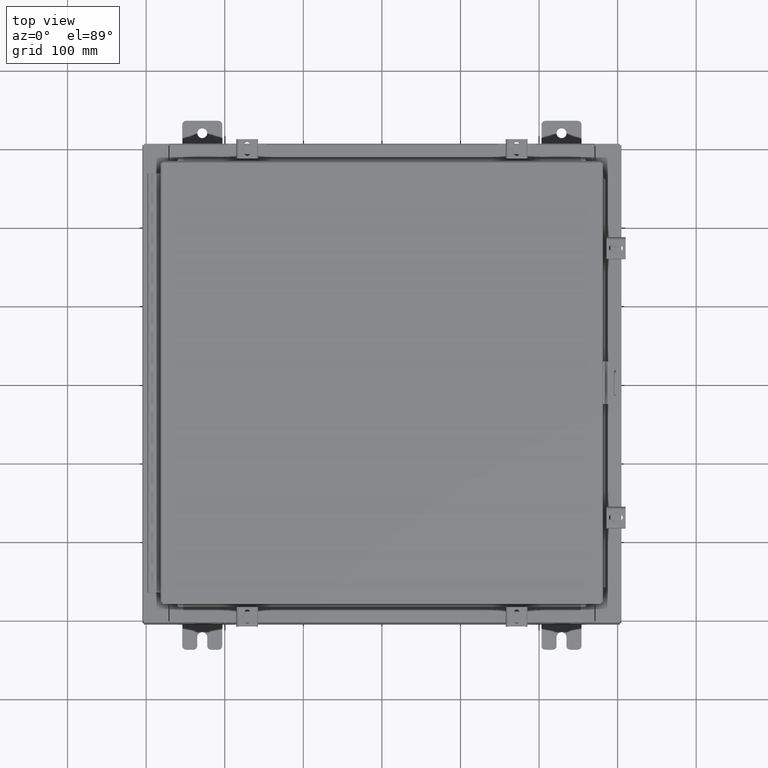
[diagram: clean part render]
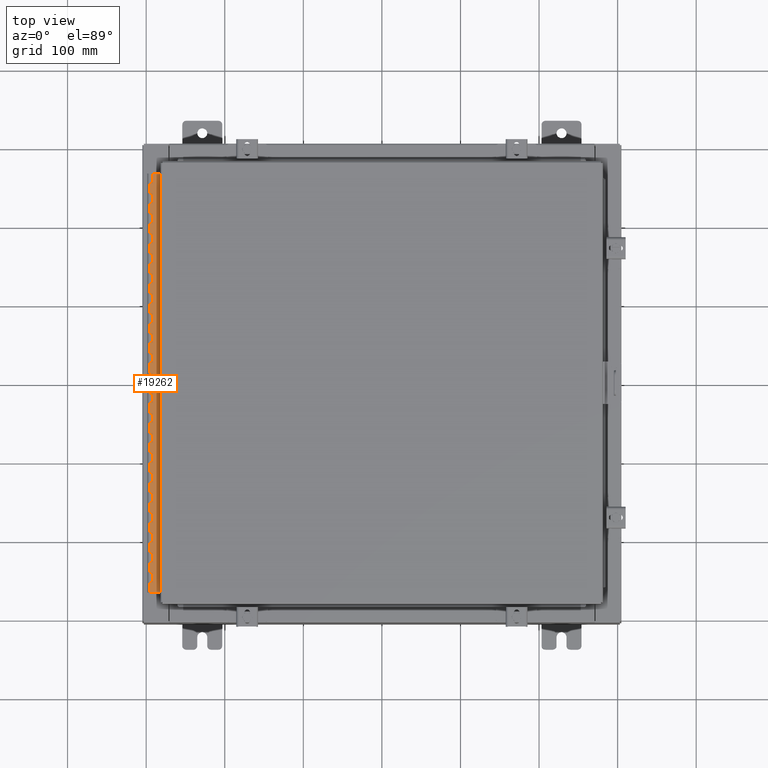
[diagram: same view with one face highlighted and labeled with its STEP entity id]
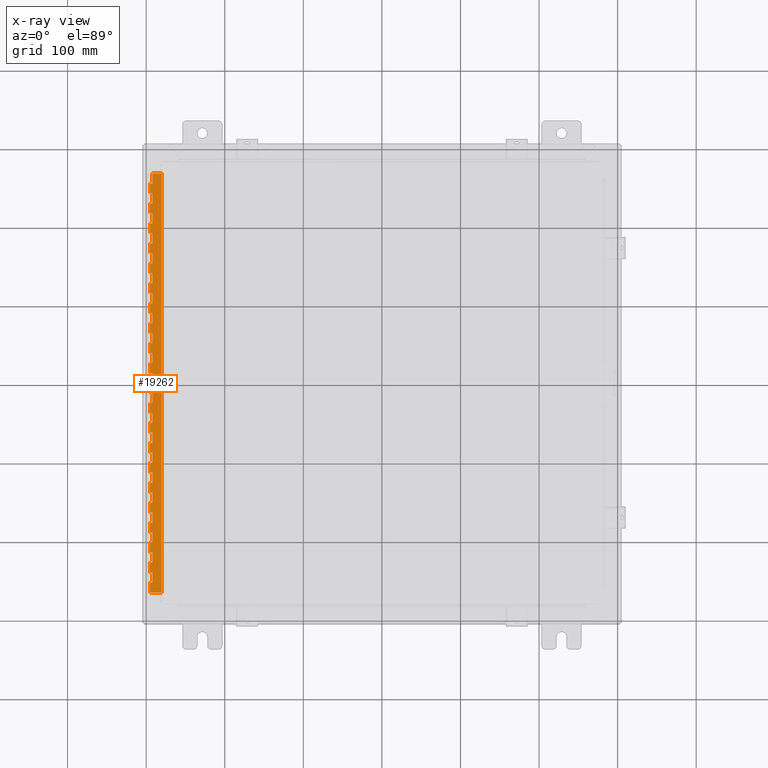
[diagram: x-ray of the same camera — body ghosted, the highlighted face saturated]
A machine part, top view. The second image highlights one B-rep face of the part: STEP entity #19262.
The next image is the same camera in x-ray: the body ghosted, the highlighted face saturated — about 0% of this face is hidden behind the body in this view.
In plain terms, the highlighted planar face has unit normal (-0, -0, 1).
Its self-contained STEP definition (entity closure, byte-faithful):
#18 = DIRECTION ( 'NONE',  ( 0.0000000000000000000, -0.0000000000000000000, -1.000000000000000000 ) ) ;
#49 = CARTESIAN_POINT ( 'NONE',  ( -0.6869999999999982800, 0.5504999999999997700, -21.00000000000000000 ) ) ;
#50 = ORIENTED_EDGE ( 'NONE', *, *, #13926, .F. ) ;
#84 = VECTOR ( 'NONE', #18016, 39.37007874015748100 ) ;
#151 = VECTOR ( 'NONE', #24504, 39.37007874015748100 ) ;
#156 = VERTEX_POINT ( 'NONE', #7558 ) ;
#248 = LINE ( 'NONE', #20268, #6107 ) ;
#263 = ORIENTED_EDGE ( 'NONE', *, *, #353, .T. ) ;
#353 = EDGE_CURVE ( 'NONE', #19919, #2210, #5261, .T. ) ;
#442 = ORIENTED_EDGE ( 'NONE', *, *, #5819, .F. ) ;
#473 = EDGE_CURVE ( 'NONE', #12554, #30947, #22893, .T. ) ;
#490 = CARTESIAN_POINT ( 'NONE',  ( -0.6869999999999973900, 0.8004999999999995500, -17.50000000000000000 ) ) ;
#509 = ORIENTED_EDGE ( 'NONE', *, *, #11523, .F. ) ;
#539 = DIRECTION ( 'NONE',  ( -3.389037039080723100E-015, -1.000000000000000000, 0.0000000000000000000 ) ) ;
#641 = VERTEX_POINT ( 'NONE', #18877 ) ;
#678 = VECTOR ( 'NONE', #28647, 39.37007874015748100 ) ;
#688 = EDGE_CURVE ( 'NONE', #15639, #5275, #29940, .T. ) ;
#880 = EDGE_CURVE ( 'NONE', #24416, #12182, #18561, .T. ) ;
#916 = CARTESIAN_POINT ( 'NONE',  ( -0.6869999999999978300, 0.6754999999999996600, -19.00000000000000000 ) ) ;
#927 = EDGE_CURVE ( 'NONE', #12775, #3323, #24412, .T. ) ;
#1114 = DIRECTION ( 'NONE',  ( 0.0000000000000000000, -0.0000000000000000000, -1.000000000000000000 ) ) ;
#1337 = DIRECTION ( 'NONE',  ( 0.0000000000000000000, 0.0000000000000000000, 1.000000000000000000 ) ) ;
#1353 = CARTESIAN_POINT ( 'NONE',  ( -0.6869999999999982800, 0.5504999999999997700, -14.99999999999999800 ) ) ;
#1371 = DIRECTION ( 'NONE',  ( 3.389037039080723100E-015, 1.000000000000000000, -0.0000000000000000000 ) ) ;
#1451 = ORIENTED_EDGE ( 'NONE', *, *, #6487, .F. ) ;
#1455 = VERTEX_POINT ( 'NONE', #23047 ) ;
#1461 = LINE ( 'NONE', #16138, #678 ) ;
#1539 = LINE ( 'NONE', #2860, #27385 ) ;
#1560 = EDGE_CURVE ( 'NONE', #29261, #12182, #7133, .T. ) ;
#1598 = CARTESIAN_POINT ( 'NONE',  ( -0.6869999999999978300, 0.6754999999999996600, -21.00000000000000000 ) ) ;
#1618 = EDGE_CURVE ( 'NONE', #21355, #19933, #30659, .T. ) ;
#1648 = VERTEX_POINT ( 'NONE', #6371 ) ;
#1727 = DIRECTION ( 'NONE',  ( 0.0000000000000000000, -0.0000000000000000000, -1.000000000000000000 ) ) ;
#1919 = DIRECTION ( 'NONE',  ( 0.0000000000000000000, -0.0000000000000000000, -1.000000000000000000 ) ) ;
#1979 = ORIENTED_EDGE ( 'NONE', *, *, #19379, .F. ) ;
#1980 = CARTESIAN_POINT ( 'NONE',  ( -0.6869999999999973900, 0.8004999999999995500, -4.500000000000000000 ) ) ;
#2122 = LINE ( 'NONE', #28590, #8015 ) ;
#2206 = CARTESIAN_POINT ( 'NONE',  ( -0.6869999999999982800, 0.5504999999999997700, -10.50000000000000000 ) ) ;
#2210 = VERTEX_POINT ( 'NONE', #16921 ) ;
#2219 = ORIENTED_EDGE ( 'NONE', *, *, #29480, .F. ) ;
#2320 = CARTESIAN_POINT ( 'NONE',  ( -0.6869999999999978300, 0.6754999999999996600, -7.499999999999999100 ) ) ;
#2361 = DIRECTION ( 'NONE',  ( 3.389037039080723100E-015, 1.000000000000000000, -0.0000000000000000000 ) ) ;
#2372 = LINE ( 'NONE', #29057, #9823 ) ;
#2430 = EDGE_CURVE ( 'NONE', #14320, #30277, #27863, .T. ) ;
#2503 = VECTOR ( 'NONE', #30859, 39.37007874015748100 ) ;
#2594 = ORIENTED_EDGE ( 'NONE', *, *, #3896, .F. ) ;
#2606 = VECTOR ( 'NONE', #2628, 39.37007874015748100 ) ;
#2628 = DIRECTION ( 'NONE',  ( 0.0000000000000000000, -0.0000000000000000000, -1.000000000000000000 ) ) ;
#2725 = DIRECTION ( 'NONE',  ( 3.389037039080723100E-015, 1.000000000000000000, -0.0000000000000000000 ) ) ;
#2732 = DIRECTION ( 'NONE',  ( 0.0000000000000000000, 0.0000000000000000000, 1.000000000000000000 ) ) ;
#2750 = CARTESIAN_POINT ( 'NONE',  ( -0.6869999999999982800, 0.5504999999999997700, -12.49999999999999800 ) ) ;
#2757 = VECTOR ( 'NONE', #539, 39.37007874015748100 ) ;
#2782 = DIRECTION ( 'NONE',  ( 3.389037039080723100E-015, 1.000000000000000000, -0.0000000000000000000 ) ) ;
#2812 = LINE ( 'NONE', #30800, #23572 ) ;
#2833 = CARTESIAN_POINT ( 'NONE',  ( -0.6869999999999978300, 0.6754999999999996600, -8.500000000000000000 ) ) ;
#2860 = CARTESIAN_POINT ( 'NONE',  ( -0.6869999999999982800, 0.5504999999999997700, -19.50000000000000000 ) ) ;
#3027 = CARTESIAN_POINT ( 'NONE',  ( -0.6869999999999978300, 0.6754999999999996600, -18.50000000000000000 ) ) ;
#3060 = ORIENTED_EDGE ( 'NONE', *, *, #15327, .F. ) ;
#3073 = ORIENTED_EDGE ( 'NONE', *, *, #5770, .F. ) ;
#3134 = VECTOR ( 'NONE', #19677, 39.37007874015748100 ) ;
#3143 = LINE ( 'NONE', #24012, #23132 ) ;
#3149 = DIRECTION ( 'NONE',  ( 0.0000000000000000000, -0.0000000000000000000, -1.000000000000000000 ) ) ;
#3170 = VERTEX_POINT ( 'NONE', #20617 ) ;
#3180 = CARTESIAN_POINT ( 'NONE',  ( -0.6869999999999978300, 0.6754999999999996600, -12.49999999999999800 ) ) ;
#3188 = CARTESIAN_POINT ( 'NONE',  ( -0.6869999999999982800, 0.5504999999999997700, -14.49999999999999800 ) ) ;
#3228 = ORIENTED_EDGE ( 'NONE', *, *, #6235, .F. ) ;
#3290 = LINE ( 'NONE', #19266, #16601 ) ;
#3323 = VERTEX_POINT ( 'NONE', #18632 ) ;
#3349 = CARTESIAN_POINT ( 'NONE',  ( -0.6869999999999978300, 0.6754999999999996600, -10.50000000000000000 ) ) ;
#3359 = DIRECTION ( 'NONE',  ( -3.389037039080723100E-015, -1.000000000000000000, 0.0000000000000000000 ) ) ;
#3414 = DIRECTION ( 'NONE',  ( 0.0000000000000000000, 0.0000000000000000000, 1.000000000000000000 ) ) ;
#3477 = LINE ( 'NONE', #12211, #9360 ) ;
#3500 = LINE ( 'NONE', #13623, #16813 ) ;
#3501 = CARTESIAN_POINT ( 'NONE',  ( -0.6869999999999973900, 0.8004999999999995500, -9.000000000000000000 ) ) ;
#3515 = ORIENTED_EDGE ( 'NONE', *, *, #25135, .F. ) ;
#3553 = EDGE_CURVE ( 'NONE', #26396, #19057, #20249, .T. ) ;
#3602 = EDGE_CURVE ( 'NONE', #21309, #9230, #248, .T. ) ;
#3609 = CARTESIAN_POINT ( 'NONE',  ( -0.6869999999999978300, 0.6754999999999996600, -11.50000000000000000 ) ) ;
#3713 = CARTESIAN_POINT ( 'NONE',  ( -0.6869999999999978300, 0.6754999999999996600, -2.000000000000000000 ) ) ;
#3733 = DIRECTION ( 'NONE',  ( 0.0000000000000000000, -0.0000000000000000000, -1.000000000000000000 ) ) ;
#3747 = CARTESIAN_POINT ( 'NONE',  ( -0.6869999999999982800, 0.5504999999999997700, -0.5000000000000000000 ) ) ;
#3824 = CARTESIAN_POINT ( 'NONE',  ( -0.6869999999999978300, 0.6754999999999996600, -19.50000000000000000 ) ) ;
#3840 = DIRECTION ( 'NONE',  ( -3.389037039080723100E-015, -1.000000000000000000, 0.0000000000000000000 ) ) ;
#3865 = CARTESIAN_POINT ( 'NONE',  ( -0.6869999999999982800, 0.5504999999999997700, -15.50000000000000000 ) ) ;
#3872 = CARTESIAN_POINT ( 'NONE',  ( -0.6869999999999973900, 0.8004999999999995500, -16.00000000000000000 ) ) ;
#3896 = EDGE_CURVE ( 'NONE', #11043, #24416, #30803, .T. ) ;
#3902 = CARTESIAN_POINT ( 'NONE',  ( -0.6869999999999978300, 0.6754999999999996600, -11.99999999999999800 ) ) ;
#3909 = LINE ( 'NONE', #26765, #15672 ) ;
#3926 = ORIENTED_EDGE ( 'NONE', *, *, #13192, .T. ) ;
#4067 = DIRECTION ( 'NONE',  ( 0.0000000000000000000, 0.0000000000000000000, 1.000000000000000000 ) ) ;
#4139 = EDGE_CURVE ( 'NONE', #9873, #15062, #17850, .T. ) ;
#4198 = ORIENTED_EDGE ( 'NONE', *, *, #6283, .T. ) ;
#4199 = CARTESIAN_POINT ( 'NONE',  ( -0.6869999999999978300, 0.6754999999999996600, -5.000000000000000000 ) ) ;
#4210 = DIRECTION ( 'NONE',  ( 0.0000000000000000000, 0.0000000000000000000, 1.000000000000000000 ) ) ;
#4230 = CARTESIAN_POINT ( 'NONE',  ( -0.6869999999999982800, 0.5504999999999997700, -4.500000000000000000 ) ) ;
#4294 = CARTESIAN_POINT ( 'NONE',  ( -0.6869999999999982800, 0.5504999999999997700, -1.000000000000000000 ) ) ;
#4298 = DIRECTION ( 'NONE',  ( -3.389037039080723100E-015, -1.000000000000000000, 0.0000000000000000000 ) ) ;
#4498 = CARTESIAN_POINT ( 'NONE',  ( -0.6869999999999982800, 0.5504999999999997700, -11.50000000000000000 ) ) ;
#4503 = VECTOR ( 'NONE', #10052, 39.37007874015748100 ) ;
#4610 = EDGE_CURVE ( 'NONE', #19647, #11813, #29577, .T. ) ;
#4640 = ORIENTED_EDGE ( 'NONE', *, *, #11392, .F. ) ;
#4664 = ORIENTED_EDGE ( 'NONE', *, *, #22947, .F. ) ;
#4667 = CARTESIAN_POINT ( 'NONE',  ( -0.6869999999999982800, 0.5504999999999997700, -11.50000000000000000 ) ) ;
#4670 = VECTOR ( 'NONE', #28053, 39.37007874015748100 ) ;
#4908 = VERTEX_POINT ( 'NONE', #10457 ) ;
#4910 = VERTEX_POINT ( 'NONE', #30368 ) ;
#4914 = ORIENTED_EDGE ( 'NONE', *, *, #9927, .T. ) ;
#5009 = CARTESIAN_POINT ( 'NONE',  ( -0.6869999999999978300, 0.6754999999999996600, -21.00000000000000000 ) ) ;
#5029 = ORIENTED_EDGE ( 'NONE', *, *, #25786, .F. ) ;
#5097 = LINE ( 'NONE', #24653, #30196 ) ;
#5147 = ORIENTED_EDGE ( 'NONE', *, *, #29408, .F. ) ;
#5151 = EDGE_CURVE ( 'NONE', #10481, #27557, #10367, .T. ) ;
#5217 = VECTOR ( 'NONE', #1919, 39.37007874015748100 ) ;
#5261 = LINE ( 'NONE', #21035, #25244 ) ;
#5275 = VERTEX_POINT ( 'NONE', #4667 ) ;
#5296 = VECTOR ( 'NONE', #13728, 39.37007874015748100 ) ;
#5311 = CARTESIAN_POINT ( 'NONE',  ( -0.6869999999999973900, 0.8004999999999995500, -11.00000000000000000 ) ) ;
#5313 = VECTOR ( 'NONE', #4067, 39.37007874015748100 ) ;
#5346 = DIRECTION ( 'NONE',  ( -3.389037039080723100E-015, -1.000000000000000000, 0.0000000000000000000 ) ) ;
#5415 = CARTESIAN_POINT ( 'NONE',  ( -0.6869999999999982800, 0.5504999999999997700, -6.000000000000000900 ) ) ;
#5476 = VERTEX_POINT ( 'NONE', #15517 ) ;
#5585 = VECTOR ( 'NONE', #2782, 39.37007874015748100 ) ;
#5666 = LINE ( 'NONE', #1598, #18202 ) ;
#5677 = EDGE_LOOP ( 'NONE', ( #29721, #14073, #4640, #1979, #15789, #16607, #26464, #19889, #32145, #15483, #23989, #16234, #14459, #24197, #28570, #5029, #15679, #16152, #31113, #21004, #7727, #18421, #16630, #11834, #30261, #8199, #31243, #3073, #6178, #3515, #3228, #24826, #8823, #2219, #29006, #17005, #12225, #11818, #15989, #19086, #10136, #12461, #4664, #30279, #25986, #8426, #2594, #27341, #24849, #50, #27066, #3060, #263, #30485, #6937, #24241, #30638, #509, #9580, #22960, #27710, #31880, #7891, #442, #4198, #19853, #18319, #1451, #25424, #5147, #14203, #23282, #4914, #30570, #7176, #8262, #3926, #24577, #8464, #13272, #8487, #32460, #12987, #8706, #24432, #31155 ) ) ;
#5770 = EDGE_CURVE ( 'NONE', #24657, #8689, #26776, .T. ) ;
#5819 = EDGE_CURVE ( 'NONE', #25539, #24938, #24436, .T. ) ;
#5851 = CARTESIAN_POINT ( 'NONE',  ( -0.6869999999999978300, 0.6754999999999996600, -14.99999999999999800 ) ) ;
#5856 = VECTOR ( 'NONE', #12348, 39.37007874015748100 ) ;
#5901 = CARTESIAN_POINT ( 'NONE',  ( -0.6869999999999978300, 0.6754999999999996600, -3.500000000000000000 ) ) ;
#5942 = LINE ( 'NONE', #490, #84 ) ;
#5993 = DIRECTION ( 'NONE',  ( 0.0000000000000000000, 0.0000000000000000000, 1.000000000000000000 ) ) ;
#6057 = LINE ( 'NONE', #3747, #5296 ) ;
#6107 = VECTOR ( 'NONE', #2732, 39.37007874015748100 ) ;
#6115 = DIRECTION ( 'NONE',  ( 3.389037039080723100E-015, 1.000000000000000000, -0.0000000000000000000 ) ) ;
#6147 = CARTESIAN_POINT ( 'NONE',  ( -0.6869999999999978300, 0.6754999999999996600, -21.00000000000000000 ) ) ;
#6176 = VECTOR ( 'NONE', #24770, 39.37007874015748100 ) ;
#6178 = ORIENTED_EDGE ( 'NONE', *, *, #10934, .T. ) ;
#6235 = EDGE_CURVE ( 'NONE', #641, #29515, #7578, .T. ) ;
#6283 = EDGE_CURVE ( 'NONE', #25539, #18733, #31862, .T. ) ;
#6320 = CARTESIAN_POINT ( 'NONE',  ( -0.6869999999999973900, 0.8004999999999995500, -17.99999999999999600 ) ) ;
#6371 = CARTESIAN_POINT ( 'NONE',  ( -0.6869999999999978300, 0.6754999999999996600, -11.00000000000000000 ) ) ;
#6380 = VECTOR ( 'NONE', #3359, 39.37007874015748100 ) ;
#6419 = VECTOR ( 'NONE', #14231, 39.37007874015748100 ) ;
#6446 = LINE ( 'NONE', #29855, #26417 ) ;
#6476 = DIRECTION ( 'NONE',  ( -3.389037039080723100E-015, -1.000000000000000000, 0.0000000000000000000 ) ) ;
#6487 = EDGE_CURVE ( 'NONE', #27503, #10481, #7155, .T. ) ;
#6639 = LINE ( 'NONE', #27762, #31725 ) ;
#6710 = EDGE_CURVE ( 'NONE', #21309, #26396, #29115, .T. ) ;
#6714 = CARTESIAN_POINT ( 'NONE',  ( -0.6869999999999982800, 0.5504999999999997700, -14.00000000000000000 ) ) ;
#6745 = VERTEX_POINT ( 'NONE', #15443 ) ;
#6758 = VECTOR ( 'NONE', #18266, 39.37007874015748100 ) ;
#6773 = VECTOR ( 'NONE', #1337, 39.37007874015748100 ) ;
#6794 = LINE ( 'NONE', #12145, #151 ) ;
#6937 = ORIENTED_EDGE ( 'NONE', *, *, #24322, .F. ) ;
#6969 = EDGE_CURVE ( 'NONE', #26497, #30277, #19690, .T. ) ;
#7017 = DIRECTION ( 'NONE',  ( 0.0000000000000000000, -0.0000000000000000000, -1.000000000000000000 ) ) ;
#7074 = AXIS2_PLACEMENT_3D ( 'NONE', #27845, #12848, #30369 ) ;
#7133 = LINE ( 'NONE', #13507, #18117 ) ;
#7155 = LINE ( 'NONE', #1980, #13829 ) ;
#7176 = ORIENTED_EDGE ( 'NONE', *, *, #22673, .F. ) ;
#7177 = CARTESIAN_POINT ( 'NONE',  ( -0.6869999999999978300, 0.6754999999999996600, -21.00000000000000000 ) ) ;
#7241 = CARTESIAN_POINT ( 'NONE',  ( -0.6869999999999973900, 0.8004999999999995500, -19.50000000000000000 ) ) ;
#7323 = CARTESIAN_POINT ( 'NONE',  ( -0.6870000000000022800, -0.6245000000000003900, -21.00000000000000000 ) ) ;
#7362 = CARTESIAN_POINT ( 'NONE',  ( -0.6869999999999973900, 0.8004999999999995500, -8.500000000000000000 ) ) ;
#7368 = EDGE_CURVE ( 'NONE', #29466, #10528, #27888, .T. ) ;
#7462 = CARTESIAN_POINT ( 'NONE',  ( -0.6869999999999982800, 0.5504999999999997700, -16.50000000000000000 ) ) ;
#7558 = CARTESIAN_POINT ( 'NONE',  ( -0.6869999999999978300, 0.6754999999999996600, -6.000000000000000900 ) ) ;
#7578 = LINE ( 'NONE', #28608, #20925 ) ;
#7614 = DIRECTION ( 'NONE',  ( 0.0000000000000000000, 0.0000000000000000000, 1.000000000000000000 ) ) ;
#7727 = ORIENTED_EDGE ( 'NONE', *, *, #20757, .T. ) ;
#7768 = CARTESIAN_POINT ( 'NONE',  ( -0.6869999999999978300, 0.6754999999999996600, -2.500000000000000000 ) ) ;
#7891 = ORIENTED_EDGE ( 'NONE', *, *, #17923, .F. ) ;
#7968 = EDGE_CURVE ( 'NONE', #19933, #9128, #20418, .T. ) ;
#7986 = VECTOR ( 'NONE', #10519, 39.37007874015748100 ) ;
#8015 = VECTOR ( 'NONE', #8543, 39.37007874015748100 ) ;
#8068 = LINE ( 'NONE', #23639, #26430 ) ;
#8081 = EDGE_CURVE ( 'NONE', #3170, #641, #3143, .T. ) ;
#8109 = EDGE_CURVE ( 'NONE', #29261, #29715, #2372, .T. ) ;
#8199 = ORIENTED_EDGE ( 'NONE', *, *, #26620, .F. ) ;
#8226 = EDGE_CURVE ( 'NONE', #5275, #21940, #25083, .T. ) ;
#8257 = EDGE_CURVE ( 'NONE', #24195, #19647, #5097, .T. ) ;
#8262 = ORIENTED_EDGE ( 'NONE', *, *, #927, .F. ) ;
#8374 = VERTEX_POINT ( 'NONE', #17528 ) ;
#8426 = ORIENTED_EDGE ( 'NONE', *, *, #880, .F. ) ;
#8445 = CARTESIAN_POINT ( 'NONE',  ( -0.6869999999999982800, 0.5504999999999997700, -9.000000000000000000 ) ) ;
#8464 = ORIENTED_EDGE ( 'NONE', *, *, #31724, .F. ) ;
#8484 = EDGE_CURVE ( 'NONE', #32328, #156, #11347, .T. ) ;
#8487 = ORIENTED_EDGE ( 'NONE', *, *, #13302, .T. ) ;
#8543 = DIRECTION ( 'NONE',  ( 0.0000000000000000000, -0.0000000000000000000, -1.000000000000000000 ) ) ;
#8580 = CARTESIAN_POINT ( 'NONE',  ( -0.6869999999999982800, 0.5504999999999997700, -3.500000000000000000 ) ) ;
#8676 = VECTOR ( 'NONE', #16142, 39.37007874015748100 ) ;
#8689 = VERTEX_POINT ( 'NONE', #29259 ) ;
#8706 = ORIENTED_EDGE ( 'NONE', *, *, #26908, .F. ) ;
#8751 = CARTESIAN_POINT ( 'NONE',  ( -0.6869999999999978300, 0.6754999999999996600, -17.50000000000000000 ) ) ;
#8823 = ORIENTED_EDGE ( 'NONE', *, *, #27623, .T. ) ;
#9128 = VERTEX_POINT ( 'NONE', #11049 ) ;
#9198 = DIRECTION ( 'NONE',  ( 0.0000000000000000000, 0.0000000000000000000, 1.000000000000000000 ) ) ;
#9230 = VERTEX_POINT ( 'NONE', #3902 ) ;
#9313 = CARTESIAN_POINT ( 'NONE',  ( -0.6869999999999982800, 0.5504999999999997700, -19.00000000000000000 ) ) ;
#9347 = VERTEX_POINT ( 'NONE', #31826 ) ;
#9360 = VECTOR ( 'NONE', #29839, 39.37007874015748100 ) ;
#9483 = CARTESIAN_POINT ( 'NONE',  ( -0.6869999999999978300, 0.6754999999999996600, -5.500000000000000000 ) ) ;
#9515 = CARTESIAN_POINT ( 'NONE',  ( -0.6869999999999978300, 0.6754999999999996600, -16.50000000000000000 ) ) ;
#9580 = ORIENTED_EDGE ( 'NONE', *, *, #19985, .F. ) ;
#9823 = VECTOR ( 'NONE', #21601, 39.37007874015748100 ) ;
#9873 = VERTEX_POINT ( 'NONE', #3865 ) ;
#9927 = EDGE_CURVE ( 'NONE', #21355, #12470, #31949, .T. ) ;
#9955 = VECTOR ( 'NONE', #12695, 39.37007874015748100 ) ;
#10016 = DIRECTION ( 'NONE',  ( 3.389037039080723100E-015, 1.000000000000000000, -0.0000000000000000000 ) ) ;
#10024 = CARTESIAN_POINT ( 'NONE',  ( -0.6869999999999982800, 0.5504999999999997700, -10.50000000000000000 ) ) ;
#10052 = DIRECTION ( 'NONE',  ( 0.0000000000000000000, -0.0000000000000000000, -1.000000000000000000 ) ) ;
#10100 = CARTESIAN_POINT ( 'NONE',  ( -0.6869999999999978300, 0.6754999999999996600, -20.50000000000000400 ) ) ;
#10136 = ORIENTED_EDGE ( 'NONE', *, *, #15794, .T. ) ;
#10224 = CARTESIAN_POINT ( 'NONE',  ( -0.6869999999999998300, 0.07549999999999991400, 0.0000000000000000000 ) ) ;
#10265 = DIRECTION ( 'NONE',  ( 3.389037039080723100E-015, 1.000000000000000000, -0.0000000000000000000 ) ) ;
#10276 = DIRECTION ( 'NONE',  ( 0.0000000000000000000, 0.0000000000000000000, 1.000000000000000000 ) ) ;
#10367 = LINE ( 'NONE', #4230, #16191 ) ;
#10457 = CARTESIAN_POINT ( 'NONE',  ( -0.6869999999999978300, 0.6754999999999996600, -9.000000000000000000 ) ) ;
#10481 = VERTEX_POINT ( 'NONE', #31108 ) ;
#10516 = CARTESIAN_POINT ( 'NONE',  ( -0.6869999999999982800, 0.5504999999999997700, -9.500000000000000000 ) ) ;
#10519 = DIRECTION ( 'NONE',  ( -3.389037039080723100E-015, -1.000000000000000000, 0.0000000000000000000 ) ) ;
#10528 = VERTEX_POINT ( 'NONE', #3713 ) ;
#10654 = EDGE_CURVE ( 'NONE', #23739, #2210, #18982, .T. ) ;
#10667 = LINE ( 'NONE', #19275, #27478 ) ;
#10758 = EDGE_CURVE ( 'NONE', #19591, #13693, #3290, .T. ) ;
#10779 = DIRECTION ( 'NONE',  ( -3.389037039080723100E-015, -1.000000000000000000, 0.0000000000000000000 ) ) ;
#10800 = VERTEX_POINT ( 'NONE', #31956 ) ;
#10854 = VECTOR ( 'NONE', #1114, 39.37007874015748100 ) ;
#10858 = EDGE_CURVE ( 'NONE', #19699, #13639, #6794, .T. ) ;
#10860 = VECTOR ( 'NONE', #1371, 39.37007874015748100 ) ;
#10915 = CARTESIAN_POINT ( 'NONE',  ( -0.6869999999999982800, 0.5504999999999997700, -5.000000000000000000 ) ) ;
#10934 = EDGE_CURVE ( 'NONE', #24657, #9347, #11908, .T. ) ;
#10962 = CARTESIAN_POINT ( 'NONE',  ( -0.6869999999999982800, 0.5504999999999997700, -20.00000000000000000 ) ) ;
#11043 = VERTEX_POINT ( 'NONE', #10516 ) ;
#11049 = CARTESIAN_POINT ( 'NONE',  ( -0.6869999999999982800, 0.5504999999999997700, -4.000000000000000000 ) ) ;
#11093 = DIRECTION ( 'NONE',  ( 0.0000000000000000000, -0.0000000000000000000, -1.000000000000000000 ) ) ;
#11129 = VECTOR ( 'NONE', #19433, 39.37007874015748100 ) ;
#11196 = CARTESIAN_POINT ( 'NONE',  ( -0.6869999999999982800, 0.5504999999999997700, -16.50000000000000000 ) ) ;
#11202 = LINE ( 'NONE', #2206, #31190 ) ;
#11298 = CARTESIAN_POINT ( 'NONE',  ( -0.6869999999999973900, 0.8004999999999995500, -7.499999999999999100 ) ) ;
#11326 = CARTESIAN_POINT ( 'NONE',  ( -0.6869999999999982800, 0.5504999999999997700, -1.499999999999999800 ) ) ;
#11347 = LINE ( 'NONE', #30461, #4670 ) ;
#11392 = EDGE_CURVE ( 'NONE', #10800, #14841, #13442, .T. ) ;
#11523 = EDGE_CURVE ( 'NONE', #20240, #16475, #28715, .T. ) ;
#11550 = CARTESIAN_POINT ( 'NONE',  ( -0.6869999999999982800, 0.5504999999999997700, -2.000000000000000000 ) ) ;
#11606 = LINE ( 'NONE', #26082, #10854 ) ;
#11674 = CARTESIAN_POINT ( 'NONE',  ( -0.6869999999999982800, 0.5504999999999997700, -7.000000000000000000 ) ) ;
#11720 = DIRECTION ( 'NONE',  ( 3.389037039080723100E-015, 1.000000000000000000, -0.0000000000000000000 ) ) ;
#11751 = VECTOR ( 'NONE', #20545, 39.37007874015748100 ) ;
#11804 = VECTOR ( 'NONE', #18, 39.37007874015748100 ) ;
#11813 = VERTEX_POINT ( 'NONE', #916 ) ;
#11818 = ORIENTED_EDGE ( 'NONE', *, *, #13352, .F. ) ;
#11822 = CARTESIAN_POINT ( 'NONE',  ( -0.6869999999999973900, 0.8004999999999995500, -8.000000000000000000 ) ) ;
#11834 = ORIENTED_EDGE ( 'NONE', *, *, #18533, .F. ) ;
#11894 = EDGE_CURVE ( 'NONE', #13639, #26235, #25944, .T. ) ;
#11908 = LINE ( 'NONE', #5009, #24428 ) ;
#12047 = VECTOR ( 'NONE', #9198, 39.37007874015748100 ) ;
#12145 = CARTESIAN_POINT ( 'NONE',  ( -0.6869999999999973900, 0.8004999999999995500, -16.50000000000000000 ) ) ;
#12182 = VERTEX_POINT ( 'NONE', #29923 ) ;
#12211 = CARTESIAN_POINT ( 'NONE',  ( -0.6869999999999978300, 0.6754999999999996600, -21.00000000000000000 ) ) ;
#12225 = ORIENTED_EDGE ( 'NONE', *, *, #3602, .T. ) ;
#12335 = DIRECTION ( 'NONE',  ( 3.389037039080723100E-015, 1.000000000000000000, -0.0000000000000000000 ) ) ;
#12348 = DIRECTION ( 'NONE',  ( 0.0000000000000000000, 0.0000000000000000000, 1.000000000000000000 ) ) ;
#12415 = VECTOR ( 'NONE', #3414, 39.37007874015748100 ) ;
#12436 = VERTEX_POINT ( 'NONE', #10962 ) ;
#12461 = ORIENTED_EDGE ( 'NONE', *, *, #18996, .F. ) ;
#12470 = VERTEX_POINT ( 'NONE', #28582 ) ;
#12554 = VERTEX_POINT ( 'NONE', #8751 ) ;
#12695 = DIRECTION ( 'NONE',  ( -3.389037039080723100E-015, -1.000000000000000000, 0.0000000000000000000 ) ) ;
#12723 = VECTOR ( 'NONE', #23362, 39.37007874015748100 ) ;
#12775 = VERTEX_POINT ( 'NONE', #7768 ) ;
#12807 = EDGE_CURVE ( 'NONE', #26235, #30947, #27457, .T. ) ;
#12848 = DIRECTION ( 'NONE',  ( 1.000000000000000000, -3.369016658928398200E-015, 0.0000000000000000000 ) ) ;
#12868 = LINE ( 'NONE', #7241, #6176 ) ;
#12987 = ORIENTED_EDGE ( 'NONE', *, *, #17281, .F. ) ;
#13036 = CARTESIAN_POINT ( 'NONE',  ( -0.6869999999999973900, 0.8004999999999995500, -0.5000000000000000000 ) ) ;
#13108 = CARTESIAN_POINT ( 'NONE',  ( -0.6869999999999973900, 0.8004999999999995500, -2.000000000000000000 ) ) ;
#13131 = CARTESIAN_POINT ( 'NONE',  ( -0.6869999999999978300, 0.6754999999999996600, -15.50000000000000000 ) ) ;
#13183 = CARTESIAN_POINT ( 'NONE',  ( -0.6869999999999982800, 0.5504999999999997700, -7.499999999999999100 ) ) ;
#13192 = EDGE_CURVE ( 'NONE', #12775, #10528, #23127, .T. ) ;
#13258 = CARTESIAN_POINT ( 'NONE',  ( -0.6869999999999982800, 0.5504999999999997700, -19.50000000000000000 ) ) ;
#13270 = DIRECTION ( 'NONE',  ( -3.389037039080723100E-015, -1.000000000000000000, 0.0000000000000000000 ) ) ;
#13272 = ORIENTED_EDGE ( 'NONE', *, *, #15651, .F. ) ;
#13302 = EDGE_CURVE ( 'NONE', #20410, #21519, #13323, .T. ) ;
#13323 = LINE ( 'NONE', #22611, #20787 ) ;
#13330 = CARTESIAN_POINT ( 'NONE',  ( -0.6869999999999982800, 0.5504999999999997700, -11.99999999999999800 ) ) ;
#13352 = EDGE_CURVE ( 'NONE', #21940, #9230, #6639, .T. ) ;
#13406 = EDGE_CURVE ( 'NONE', #30848, #12470, #18419, .T. ) ;
#13442 = LINE ( 'NONE', #29425, #5217 ) ;
#13507 = CARTESIAN_POINT ( 'NONE',  ( -0.6869999999999978300, 0.6754999999999996600, -21.00000000000000000 ) ) ;
#13623 = CARTESIAN_POINT ( 'NONE',  ( -0.6869999999999978300, 0.6754999999999996600, -21.00000000000000000 ) ) ;
#13636 = CARTESIAN_POINT ( 'NONE',  ( -0.6869999999999978300, 0.6754999999999996600, -21.00000000000000000 ) ) ;
#13639 = VERTEX_POINT ( 'NONE', #7462 ) ;
#13679 = DIRECTION ( 'NONE',  ( 0.0000000000000000000, -0.0000000000000000000, -1.000000000000000000 ) ) ;
#13689 = CARTESIAN_POINT ( 'NONE',  ( -0.6869999999999973900, 0.8004999999999995500, -1.499999999999999800 ) ) ;
#13693 = VERTEX_POINT ( 'NONE', #10224 ) ;
#13728 = DIRECTION ( 'NONE',  ( 0.0000000000000000000, -0.0000000000000000000, -1.000000000000000000 ) ) ;
#13741 = EDGE_CURVE ( 'NONE', #21315, #12436, #1539, .T. ) ;
#13745 = LINE ( 'NONE', #20698, #24707 ) ;
#13829 = VECTOR ( 'NONE', #16969, 39.37007874015748100 ) ;
#13854 = DIRECTION ( 'NONE',  ( 3.389037039080723100E-015, 1.000000000000000000, -0.0000000000000000000 ) ) ;
#13861 = CARTESIAN_POINT ( 'NONE',  ( -0.6869999999999973900, 0.8004999999999995500, -4.000000000000000000 ) ) ;
#13926 = EDGE_CURVE ( 'NONE', #15593, #4908, #29366, .T. ) ;
#14073 = ORIENTED_EDGE ( 'NONE', *, *, #25000, .T. ) ;
#14176 = DIRECTION ( 'NONE',  ( 3.389037039080723100E-015, 1.000000000000000000, -0.0000000000000000000 ) ) ;
#14203 = ORIENTED_EDGE ( 'NONE', *, *, #7968, .F. ) ;
#14231 = DIRECTION ( 'NONE',  ( 3.389037039080723100E-015, 1.000000000000000000, -0.0000000000000000000 ) ) ;
#14268 = DIRECTION ( 'NONE',  ( 3.389037039080723100E-015, 1.000000000000000000, -0.0000000000000000000 ) ) ;
#14320 = VERTEX_POINT ( 'NONE', #3027 ) ;
#14323 = CARTESIAN_POINT ( 'NONE',  ( -0.6869999999999982800, 0.5504999999999997700, -8.500000000000000000 ) ) ;
#14347 = LINE ( 'NONE', #29190, #15140 ) ;
#14401 = VECTOR ( 'NONE', #5346, 39.37007874015748100 ) ;
#14459 = ORIENTED_EDGE ( 'NONE', *, *, #2430, .T. ) ;
#14521 = VECTOR ( 'NONE', #10276, 39.37007874015748100 ) ;
#14617 = LINE ( 'NONE', #17943, #7986 ) ;
#14808 = VERTEX_POINT ( 'NONE', #17560 ) ;
#14841 = VERTEX_POINT ( 'NONE', #49 ) ;
#15062 = VERTEX_POINT ( 'NONE', #28402 ) ;
#15140 = VECTOR ( 'NONE', #14176, 39.37007874015748100 ) ;
#15297 = EDGE_CURVE ( 'NONE', #24779, #21315, #12868, .T. ) ;
#15312 = CARTESIAN_POINT ( 'NONE',  ( -0.6869999999999973900, 0.8004999999999995500, -6.499999999999999100 ) ) ;
#15327 = EDGE_CURVE ( 'NONE', #19919, #16290, #32054, .T. ) ;
#15443 = CARTESIAN_POINT ( 'NONE',  ( -0.6869999999999982800, 0.5504999999999997700, -17.50000000000000000 ) ) ;
#15483 = ORIENTED_EDGE ( 'NONE', *, *, #4610, .F. ) ;
#15494 = CARTESIAN_POINT ( 'NONE',  ( -0.6869999999999973900, 0.8004999999999995500, -2.999999999999999600 ) ) ;
#15517 = CARTESIAN_POINT ( 'NONE',  ( -0.6869999999999982800, 0.5504999999999997700, -6.499999999999999100 ) ) ;
#15539 = EDGE_CURVE ( 'NONE', #8689, #17321, #25766, .T. ) ;
#15593 = VERTEX_POINT ( 'NONE', #8445 ) ;
#15639 = VERTEX_POINT ( 'NONE', #3609 ) ;
#15651 = EDGE_CURVE ( 'NONE', #20410, #27632, #17527, .T. ) ;
#15672 = VECTOR ( 'NONE', #4210, 39.37007874015748100 ) ;
#15679 = ORIENTED_EDGE ( 'NONE', *, *, #473, .T. ) ;
#15789 = ORIENTED_EDGE ( 'NONE', *, *, #22633, .T. ) ;
#15794 = EDGE_CURVE ( 'NONE', #15639, #1648, #32019, .T. ) ;
#15801 = CARTESIAN_POINT ( 'NONE',  ( -0.6869999999999982800, 0.5504999999999997700, -7.499999999999999100 ) ) ;
#15901 = VECTOR ( 'NONE', #3840, 39.37007874015748100 ) ;
#15989 = ORIENTED_EDGE ( 'NONE', *, *, #8226, .F. ) ;
#16033 = CARTESIAN_POINT ( 'NONE',  ( -0.6869999999999982800, 0.5504999999999997700, -11.00000000000000000 ) ) ;
#16070 = CARTESIAN_POINT ( 'NONE',  ( -0.6869999999999982800, 0.5504999999999997700, -0.5000000000000000000 ) ) ;
#16138 = CARTESIAN_POINT ( 'NONE',  ( -0.6869999999999973900, 0.8004999999999995500, -1.000000000000000000 ) ) ;
#16142 = DIRECTION ( 'NONE',  ( 3.389037039080723100E-015, 1.000000000000000000, -0.0000000000000000000 ) ) ;
#16152 = ORIENTED_EDGE ( 'NONE', *, *, #12807, .F. ) ;
#16155 = VECTOR ( 'NONE', #2361, 39.37007874015748100 ) ;
#16191 = VECTOR ( 'NONE', #1727, 39.37007874015748100 ) ;
#16234 = ORIENTED_EDGE ( 'NONE', *, *, #18401, .F. ) ;
#16284 = DIRECTION ( 'NONE',  ( 0.0000000000000000000, 0.0000000000000000000, 1.000000000000000000 ) ) ;
#16290 = VERTEX_POINT ( 'NONE', #14323 ) ;
#16318 = CARTESIAN_POINT ( 'NONE',  ( -0.6869999999999978300, 0.6754999999999996600, -21.00000000000000000 ) ) ;
#16408 = VECTOR ( 'NONE', #28743, 39.37007874015748100 ) ;
#16475 = VERTEX_POINT ( 'NONE', #17483 ) ;
#16494 = DIRECTION ( 'NONE',  ( 0.0000000000000000000, -0.0000000000000000000, -1.000000000000000000 ) ) ;
#16526 = CARTESIAN_POINT ( 'NONE',  ( -0.6869999999999998300, 0.07549999999999991400, -21.00000000000000000 ) ) ;
#16601 = VECTOR ( 'NONE', #21776, 39.37007874015748100 ) ;
#16607 = ORIENTED_EDGE ( 'NONE', *, *, #24092, .F. ) ;
#16630 = ORIENTED_EDGE ( 'NONE', *, *, #4139, .F. ) ;
#16672 = VECTOR ( 'NONE', #19846, 39.37007874015748100 ) ;
#16788 = EDGE_CURVE ( 'NONE', #27503, #31365, #5666, .T. ) ;
#16813 = VECTOR ( 'NONE', #28627, 39.37007874015748100 ) ;
#16921 = CARTESIAN_POINT ( 'NONE',  ( -0.6869999999999978300, 0.6754999999999996600, -8.000000000000000000 ) ) ;
#16965 = VECTOR ( 'NONE', #31065, 39.37007874015748100 ) ;
#16969 = DIRECTION ( 'NONE',  ( -3.389037039080723100E-015, -1.000000000000000000, 0.0000000000000000000 ) ) ;
#17005 = ORIENTED_EDGE ( 'NONE', *, *, #6710, .F. ) ;
#17187 = DIRECTION ( 'NONE',  ( 0.0000000000000000000, -0.0000000000000000000, -1.000000000000000000 ) ) ;
#17281 = EDGE_CURVE ( 'NONE', #32065, #31082, #6057, .T. ) ;
#17302 = CARTESIAN_POINT ( 'NONE',  ( -0.6869999999999982800, 0.5504999999999997700, -1.499999999999999800 ) ) ;
#17321 = VERTEX_POINT ( 'NONE', #1353 ) ;
#17354 = LINE ( 'NONE', #27806, #30697 ) ;
#17457 = VECTOR ( 'NONE', #16494, 39.37007874015748100 ) ;
#17483 = CARTESIAN_POINT ( 'NONE',  ( -0.6869999999999978300, 0.6754999999999996600, -7.000000000000000000 ) ) ;
#17528 = CARTESIAN_POINT ( 'NONE',  ( -0.6869999999999978300, 0.6754999999999996600, 0.0000000000000000000 ) ) ;
#17527 = LINE ( 'NONE', #13689, #29305 ) ;
#17530 = CARTESIAN_POINT ( 'NONE',  ( -0.6869999999999982800, 0.5504999999999997700, -17.50000000000000000 ) ) ;
#17560 = CARTESIAN_POINT ( 'NONE',  ( -0.6869999999999978300, 0.6754999999999996600, -20.00000000000000000 ) ) ;
#17617 = CARTESIAN_POINT ( 'NONE',  ( -0.6869999999999982800, 0.5504999999999997700, -12.49999999999999800 ) ) ;
#17719 = CARTESIAN_POINT ( 'NONE',  ( -0.6869999999999973900, 0.8004999999999995500, -11.50000000000000000 ) ) ;
#17741 = DIRECTION ( 'NONE',  ( -3.389037039080723100E-015, -1.000000000000000000, 0.0000000000000000000 ) ) ;
#17794 = CARTESIAN_POINT ( 'NONE',  ( -0.6869999999999982800, 0.5504999999999997700, -18.50000000000000000 ) ) ;
#17850 = LINE ( 'NONE', #32481, #4503 ) ;
#17923 = EDGE_CURVE ( 'NONE', #24938, #24209, #2122, .T. ) ;
#17943 = CARTESIAN_POINT ( 'NONE',  ( -0.6869999999999973900, 0.8004999999999995500, -18.50000000000000000 ) ) ;
#17952 = CARTESIAN_POINT ( 'NONE',  ( -0.6869999999999982800, 0.5504999999999997700, -3.500000000000000000 ) ) ;
#18016 = DIRECTION ( 'NONE',  ( -3.389037039080723100E-015, -1.000000000000000000, 0.0000000000000000000 ) ) ;
#18117 = VECTOR ( 'NONE', #28514, 39.37007874015748100 ) ;
#18202 = VECTOR ( 'NONE', #29211, 39.37007874015748100 ) ;
#18266 = DIRECTION ( 'NONE',  ( 3.389037039080723100E-015, 1.000000000000000000, -0.0000000000000000000 ) ) ;
#18319 = ORIENTED_EDGE ( 'NONE', *, *, #5151, .F. ) ;
#18376 = CARTESIAN_POINT ( 'NONE',  ( -0.6869999999999973900, 0.8004999999999995500, -10.00000000000000000 ) ) ;
#18401 = EDGE_CURVE ( 'NONE', #14320, #24195, #14617, .T. ) ;
#18419 = LINE ( 'NONE', #15494, #11751 ) ;
#18421 = ORIENTED_EDGE ( 'NONE', *, *, #27655, .F. ) ;
#18425 = VECTOR ( 'NONE', #19528, 39.37007874015748100 ) ;
#18501 = FACE_OUTER_BOUND ( 'NONE', #5677, .T. ) ;
#18533 = EDGE_CURVE ( 'NONE', #19979, #9873, #24802, .T. ) ;
#18561 = LINE ( 'NONE', #18376, #2503 ) ;
#18632 = CARTESIAN_POINT ( 'NONE',  ( -0.6869999999999982800, 0.5504999999999997700, -2.500000000000000000 ) ) ;
#18726 = CARTESIAN_POINT ( 'NONE',  ( -0.6869999999999978300, 0.6754999999999996600, -17.99999999999999600 ) ) ;
#18733 = VERTEX_POINT ( 'NONE', #4199 ) ;
#18877 = CARTESIAN_POINT ( 'NONE',  ( -0.6869999999999982800, 0.5504999999999997700, -13.50000000000000000 ) ) ;
#18908 = LINE ( 'NONE', #5311, #5585 ) ;
#18982 = LINE ( 'NONE', #11822, #6419 ) ;
#18996 = EDGE_CURVE ( 'NONE', #29325, #1648, #18908, .T. ) ;
#19057 = VERTEX_POINT ( 'NONE', #27978 ) ;
#19086 = ORIENTED_EDGE ( 'NONE', *, *, #688, .F. ) ;
#19188 = LINE ( 'NONE', #7177, #5856 ) ;
#19262 = ADVANCED_FACE ( 'NONE', ( #18501 ), #25218, .T. ) ;
#19266 = CARTESIAN_POINT ( 'NONE',  ( -0.6869999999999998300, 0.07549999999999991400, -21.00000000000000000 ) ) ;
#19275 = CARTESIAN_POINT ( 'NONE',  ( -0.6870000000000022800, -0.6245000000000003900, 0.0000000000000000000 ) ) ;
#19282 = CARTESIAN_POINT ( 'NONE',  ( -0.6869999999999973900, 0.8004999999999995500, -14.99999999999999800 ) ) ;
#19328 = CARTESIAN_POINT ( 'NONE',  ( -0.6869999999999973900, 0.8004999999999995500, -14.49999999999999800 ) ) ;
#19379 = EDGE_CURVE ( 'NONE', #23043, #10800, #2812, .T. ) ;
#19384 = DIRECTION ( 'NONE',  ( 3.369016658928398200E-015, 1.000000000000000000, 0.0000000000000000000 ) ) ;
#19433 = DIRECTION ( 'NONE',  ( -3.389037039080723100E-015, -1.000000000000000000, 0.0000000000000000000 ) ) ;
#19528 = DIRECTION ( 'NONE',  ( 0.0000000000000000000, -0.0000000000000000000, -1.000000000000000000 ) ) ;
#19591 = VERTEX_POINT ( 'NONE', #16526 ) ;
#19631 = CARTESIAN_POINT ( 'NONE',  ( -0.6869999999999978300, 0.6754999999999996600, -14.49999999999999800 ) ) ;
#19647 = VERTEX_POINT ( 'NONE', #9313 ) ;
#19656 = EDGE_CURVE ( 'NONE', #13693, #8374, #10667, .T. ) ;
#19677 = DIRECTION ( 'NONE',  ( 0.0000000000000000000, 0.0000000000000000000, 1.000000000000000000 ) ) ;
#19690 = LINE ( 'NONE', #6320, #32216 ) ;
#19699 = VERTEX_POINT ( 'NONE', #9515 ) ;
#19846 = DIRECTION ( 'NONE',  ( 0.0000000000000000000, -0.0000000000000000000, -1.000000000000000000 ) ) ;
#19853 = ORIENTED_EDGE ( 'NONE', *, *, #25259, .F. ) ;
#19884 = CARTESIAN_POINT ( 'NONE',  ( -0.6869999999999973900, 0.8004999999999995500, -7.000000000000000000 ) ) ;
#19889 = ORIENTED_EDGE ( 'NONE', *, *, #15297, .F. ) ;
#19913 = VECTOR ( 'NONE', #20619, 39.37007874015748100 ) ;
#19919 = VERTEX_POINT ( 'NONE', #2833 ) ;
#19933 = VERTEX_POINT ( 'NONE', #17952 ) ;
#19979 = VERTEX_POINT ( 'NONE', #13131 ) ;
#19985 = EDGE_CURVE ( 'NONE', #5476, #20240, #13745, .T. ) ;
#20240 = VERTEX_POINT ( 'NONE', #11674 ) ;
#20249 = LINE ( 'NONE', #17617, #2606 ) ;
#20268 = CARTESIAN_POINT ( 'NONE',  ( -0.6869999999999978300, 0.6754999999999996600, -21.00000000000000000 ) ) ;
#20364 = CARTESIAN_POINT ( 'NONE',  ( -0.6869999999999973900, 0.8004999999999995500, -17.00000000000000000 ) ) ;
#20382 = CARTESIAN_POINT ( 'NONE',  ( -0.6869999999999973900, 0.8004999999999995500, -12.49999999999999800 ) ) ;
#20410 = VERTEX_POINT ( 'NONE', #29863 ) ;
#20418 = LINE ( 'NONE', #8580, #25490 ) ;
#20524 = LINE ( 'NONE', #7323, #27150 ) ;
#20545 = DIRECTION ( 'NONE',  ( 3.389037039080723100E-015, 1.000000000000000000, -0.0000000000000000000 ) ) ;
#20617 = CARTESIAN_POINT ( 'NONE',  ( -0.6869999999999978300, 0.6754999999999996600, -13.50000000000000000 ) ) ;
#20619 = DIRECTION ( 'NONE',  ( 0.0000000000000000000, -0.0000000000000000000, -1.000000000000000000 ) ) ;
#20698 = CARTESIAN_POINT ( 'NONE',  ( -0.6869999999999982800, 0.5504999999999997700, -6.499999999999999100 ) ) ;
#20757 = EDGE_CURVE ( 'NONE', #19699, #4910, #3500, .T. ) ;
#20787 = VECTOR ( 'NONE', #7614, 39.37007874015748100 ) ;
#20823 = VERTEX_POINT ( 'NONE', #23899 ) ;
#20841 = LINE ( 'NONE', #17530, #11804 ) ;
#20905 = LINE ( 'NONE', #30761, #6758 ) ;
#20925 = VECTOR ( 'NONE', #11093, 39.37007874015748100 ) ;
#20963 = CARTESIAN_POINT ( 'NONE',  ( -0.6869999999999978300, 0.6754999999999996600, -21.00000000000000000 ) ) ;
#21004 = ORIENTED_EDGE ( 'NONE', *, *, #10858, .F. ) ;
#21035 = CARTESIAN_POINT ( 'NONE',  ( -0.6869999999999978300, 0.6754999999999996600, -21.00000000000000000 ) ) ;
#21089 = LINE ( 'NONE', #15312, #14401 ) ;
#21128 = VECTOR ( 'NONE', #10016, 39.37007874015748100 ) ;
#21309 = VERTEX_POINT ( 'NONE', #3180 ) ;
#21315 = VERTEX_POINT ( 'NONE', #13258 ) ;
#21349 = CARTESIAN_POINT ( 'NONE',  ( -0.6869999999999978300, 0.6754999999999996600, -21.00000000000000000 ) ) ;
#21355 = VERTEX_POINT ( 'NONE', #5901 ) ;
#21519 = VERTEX_POINT ( 'NONE', #29242 ) ;
#21601 = DIRECTION ( 'NONE',  ( -3.389037039080723100E-015, -1.000000000000000000, 0.0000000000000000000 ) ) ;
#21776 = DIRECTION ( 'NONE',  ( 0.0000000000000000000, 0.0000000000000000000, 1.000000000000000000 ) ) ;
#21810 = EDGE_CURVE ( 'NONE', #32328, #5476, #21089, .T. ) ;
#21894 = LINE ( 'NONE', #24999, #21128 ) ;
#21940 = VERTEX_POINT ( 'NONE', #13330 ) ;
#21957 = CARTESIAN_POINT ( 'NONE',  ( -0.6869999999999973900, 0.8004999999999995500, -5.500000000000000000 ) ) ;
#22106 = VECTOR ( 'NONE', #16284, 39.37007874015748100 ) ;
#22114 = EDGE_CURVE ( 'NONE', #31082, #21519, #1461, .T. ) ;
#22211 = CARTESIAN_POINT ( 'NONE',  ( -0.6869999999999978300, 0.6754999999999996600, -6.499999999999999100 ) ) ;
#22364 = DIRECTION ( 'NONE',  ( -3.389037039080723100E-015, -1.000000000000000000, 0.0000000000000000000 ) ) ;
#22547 = VERTEX_POINT ( 'NONE', #13183 ) ;
#22562 = LINE ( 'NONE', #17302, #16672 ) ;
#22580 = LINE ( 'NONE', #11298, #15901 ) ;
#22611 = CARTESIAN_POINT ( 'NONE',  ( -0.6869999999999978300, 0.6754999999999996600, -21.00000000000000000 ) ) ;
#22633 = EDGE_CURVE ( 'NONE', #23043, #14808, #32388, .T. ) ;
#22673 = EDGE_CURVE ( 'NONE', #3323, #30848, #11606, .T. ) ;
#22690 = VECTOR ( 'NONE', #6115, 39.37007874015748100 ) ;
#22723 = EDGE_CURVE ( 'NONE', #24697, #22547, #22580, .T. ) ;
#22893 = LINE ( 'NONE', #21349, #22106 ) ;
#22904 = DIRECTION ( 'NONE',  ( 0.0000000000000000000, -0.0000000000000000000, -1.000000000000000000 ) ) ;
#22911 = VECTOR ( 'NONE', #14268, 39.37007874015748100 ) ;
#22947 = EDGE_CURVE ( 'NONE', #29715, #29325, #11202, .T. ) ;
#22960 = ORIENTED_EDGE ( 'NONE', *, *, #21810, .F. ) ;
#23029 = CARTESIAN_POINT ( 'NONE',  ( -0.6869999999999978300, 0.6754999999999996600, -4.000000000000000000 ) ) ;
#23043 = VERTEX_POINT ( 'NONE', #10100 ) ;
#23047 = CARTESIAN_POINT ( 'NONE',  ( -0.6869999999999978300, 0.6754999999999996600, -0.5000000000000000000 ) ) ;
#23127 = LINE ( 'NONE', #29647, #3134 ) ;
#23132 = VECTOR ( 'NONE', #6476, 39.37007874015748100 ) ;
#23206 = VECTOR ( 'NONE', #28725, 39.37007874015748100 ) ;
#23239 = CARTESIAN_POINT ( 'NONE',  ( -0.6869999999999973900, 0.8004999999999995500, -9.500000000000000000 ) ) ;
#23282 = ORIENTED_EDGE ( 'NONE', *, *, #1618, .F. ) ;
#23362 = DIRECTION ( 'NONE',  ( 0.0000000000000000000, -0.0000000000000000000, -1.000000000000000000 ) ) ;
#23399 = CARTESIAN_POINT ( 'NONE',  ( -0.6869999999999973900, 0.8004999999999995500, -15.50000000000000000 ) ) ;
#23504 = CARTESIAN_POINT ( 'NONE',  ( -0.6869999999999982800, 0.5504999999999997700, -8.000000000000000000 ) ) ;
#23572 = VECTOR ( 'NONE', #13270, 39.37007874015748100 ) ;
#23576 = DIRECTION ( 'NONE',  ( 0.0000000000000000000, -0.0000000000000000000, -1.000000000000000000 ) ) ;
#23639 = CARTESIAN_POINT ( 'NONE',  ( -0.6869999999999982800, 0.5504999999999997700, -8.500000000000000000 ) ) ;
#23669 = LINE ( 'NONE', #6147, #31128 ) ;
#23739 = VERTEX_POINT ( 'NONE', #23504 ) ;
#23746 = VECTOR ( 'NONE', #10779, 39.37007874015748100 ) ;
#23807 = CARTESIAN_POINT ( 'NONE',  ( -0.6869999999999978300, 0.6754999999999996600, -17.00000000000000000 ) ) ;
#23841 = DIRECTION ( 'NONE',  ( 3.389037039080723100E-015, 1.000000000000000000, -0.0000000000000000000 ) ) ;
#23899 = CARTESIAN_POINT ( 'NONE',  ( -0.6869999999999978300, 0.6754999999999996600, -12.99999999999999800 ) ) ;
#23989 = ORIENTED_EDGE ( 'NONE', *, *, #8257, .F. ) ;
#24012 = CARTESIAN_POINT ( 'NONE',  ( -0.6869999999999973900, 0.8004999999999995500, -13.50000000000000000 ) ) ;
#24092 = EDGE_CURVE ( 'NONE', #12436, #14808, #6446, .T. ) ;
#24185 = CARTESIAN_POINT ( 'NONE',  ( -0.6869999999999978300, 0.6754999999999996600, -21.00000000000000000 ) ) ;
#24195 = VERTEX_POINT ( 'NONE', #17794 ) ;
#24197 = ORIENTED_EDGE ( 'NONE', *, *, #6969, .F. ) ;
#24209 = VERTEX_POINT ( 'NONE', #5415 ) ;
#24241 = ORIENTED_EDGE ( 'NONE', *, *, #22723, .F. ) ;
#24322 = EDGE_CURVE ( 'NONE', #22547, #23739, #26029, .T. ) ;
#24412 = LINE ( 'NONE', #28555, #16965 ) ;
#24413 = EDGE_CURVE ( 'NONE', #24779, #11813, #23669, .T. ) ;
#24416 = VERTEX_POINT ( 'NONE', #31237 ) ;
#24428 = VECTOR ( 'NONE', #25051, 39.37007874015748100 ) ;
#24432 = ORIENTED_EDGE ( 'NONE', *, *, #27149, .T. ) ;
#24436 = LINE ( 'NONE', #21957, #11129 ) ;
#24472 = CARTESIAN_POINT ( 'NONE',  ( -0.6869999999999978300, 0.6754999999999996600, -21.00000000000000000 ) ) ;
#24504 = DIRECTION ( 'NONE',  ( -3.389037039080723100E-015, -1.000000000000000000, 0.0000000000000000000 ) ) ;
#24530 = LINE ( 'NONE', #23239, #23746 ) ;
#24577 = ORIENTED_EDGE ( 'NONE', *, *, #7368, .F. ) ;
#24653 = CARTESIAN_POINT ( 'NONE',  ( -0.6869999999999982800, 0.5504999999999997700, -18.50000000000000000 ) ) ;
#24657 = VERTEX_POINT ( 'NONE', #19631 ) ;
#24697 = VERTEX_POINT ( 'NONE', #2320 ) ;
#24707 = VECTOR ( 'NONE', #3149, 39.37007874015748100 ) ;
#24770 = DIRECTION ( 'NONE',  ( -3.389037039080723100E-015, -1.000000000000000000, 0.0000000000000000000 ) ) ;
#24779 = VERTEX_POINT ( 'NONE', #3824 ) ;
#24802 = LINE ( 'NONE', #23399, #6380 ) ;
#24814 = CARTESIAN_POINT ( 'NONE',  ( -0.6869999999999978300, 0.6754999999999996600, -9.500000000000000000 ) ) ;
#24826 = ORIENTED_EDGE ( 'NONE', *, *, #8081, .F. ) ;
#24849 = ORIENTED_EDGE ( 'NONE', *, *, #27269, .T. ) ;
#24852 = DIRECTION ( 'NONE',  ( 3.369016658928398200E-015, 1.000000000000000000, 0.0000000000000000000 ) ) ;
#24938 = VERTEX_POINT ( 'NONE', #31969 ) ;
#24999 = CARTESIAN_POINT ( 'NONE',  ( -0.6869999999999973900, 0.8004999999999995500, -6.000000000000000900 ) ) ;
#25000 = EDGE_CURVE ( 'NONE', #19591, #14841, #20524, .T. ) ;
#25051 = DIRECTION ( 'NONE',  ( 0.0000000000000000000, 0.0000000000000000000, 1.000000000000000000 ) ) ;
#25083 = LINE ( 'NONE', #4498, #18425 ) ;
#25135 = EDGE_CURVE ( 'NONE', #29515, #9347, #17354, .T. ) ;
#25174 = VECTOR ( 'NONE', #3733, 39.37007874015748100 ) ;
#25218 = PLANE ( 'NONE',  #7074 ) ;
#25244 = VECTOR ( 'NONE', #5993, 39.37007874015748100 ) ;
#25259 = EDGE_CURVE ( 'NONE', #27557, #18733, #20905, .T. ) ;
#25424 = ORIENTED_EDGE ( 'NONE', *, *, #16788, .T. ) ;
#25490 = VECTOR ( 'NONE', #23576, 39.37007874015748100 ) ;
#25537 = EDGE_CURVE ( 'NONE', #24697, #16475, #32236, .T. ) ;
#25539 = VERTEX_POINT ( 'NONE', #9483 ) ;
#25573 = VECTOR ( 'NONE', #26978, 39.37007874015748100 ) ;
#25766 = LINE ( 'NONE', #3188, #19913 ) ;
#25786 = EDGE_CURVE ( 'NONE', #12554, #6745, #5942, .T. ) ;
#25886 = VECTOR ( 'NONE', #27803, 39.37007874015748100 ) ;
#25944 = LINE ( 'NONE', #11196, #25174 ) ;
#25986 = ORIENTED_EDGE ( 'NONE', *, *, #1560, .T. ) ;
#26029 = LINE ( 'NONE', #15801, #12723 ) ;
#26082 = CARTESIAN_POINT ( 'NONE',  ( -0.6869999999999982800, 0.5504999999999997700, -2.500000000000000000 ) ) ;
#26235 = VERTEX_POINT ( 'NONE', #27276 ) ;
#26308 = EDGE_CURVE ( 'NONE', #6745, #26497, #20841, .T. ) ;
#26396 = VERTEX_POINT ( 'NONE', #2750 ) ;
#26417 = VECTOR ( 'NONE', #12335, 39.37007874015748100 ) ;
#26430 = VECTOR ( 'NONE', #13679, 39.37007874015748100 ) ;
#26464 = ORIENTED_EDGE ( 'NONE', *, *, #13741, .F. ) ;
#26497 = VERTEX_POINT ( 'NONE', #31320 ) ;
#26620 = EDGE_CURVE ( 'NONE', #17321, #30843, #30608, .T. ) ;
#26716 = VECTOR ( 'NONE', #17741, 39.37007874015748100 ) ;
#26765 = CARTESIAN_POINT ( 'NONE',  ( -0.6869999999999978300, 0.6754999999999996600, -21.00000000000000000 ) ) ;
#26776 = LINE ( 'NONE', #19328, #31895 ) ;
#26908 = EDGE_CURVE ( 'NONE', #1455, #32065, #29421, .T. ) ;
#26978 = DIRECTION ( 'NONE',  ( 0.0000000000000000000, 0.0000000000000000000, 1.000000000000000000 ) ) ;
#27066 = ORIENTED_EDGE ( 'NONE', *, *, #32066, .F. ) ;
#27149 = EDGE_CURVE ( 'NONE', #1455, #8374, #3909, .T. ) ;
#27150 = VECTOR ( 'NONE', #24852, 39.37007874015748100 ) ;
#27269 = EDGE_CURVE ( 'NONE', #27270, #4908, #19188, .T. ) ;
#27270 = VERTEX_POINT ( 'NONE', #24814 ) ;
#27276 = CARTESIAN_POINT ( 'NONE',  ( -0.6869999999999982800, 0.5504999999999997700, -17.00000000000000000 ) ) ;
#27341 = ORIENTED_EDGE ( 'NONE', *, *, #31431, .F. ) ;
#27385 = VECTOR ( 'NONE', #22904, 39.37007874015748100 ) ;
#27457 = LINE ( 'NONE', #20364, #25886 ) ;
#27478 = VECTOR ( 'NONE', #19384, 39.37007874015748100 ) ;
#27503 = VERTEX_POINT ( 'NONE', #28212 ) ;
#27557 = VERTEX_POINT ( 'NONE', #10915 ) ;
#27623 = EDGE_CURVE ( 'NONE', #3170, #20823, #29764, .T. ) ;
#27632 = VERTEX_POINT ( 'NONE', #11326 ) ;
#27655 = EDGE_CURVE ( 'NONE', #15062, #4910, #30542, .T. ) ;
#27710 = ORIENTED_EDGE ( 'NONE', *, *, #8484, .T. ) ;
#27762 = CARTESIAN_POINT ( 'NONE',  ( -0.6869999999999973900, 0.8004999999999995500, -11.99999999999999800 ) ) ;
#27769 = CARTESIAN_POINT ( 'NONE',  ( -0.6869999999999978300, 0.6754999999999996600, -21.00000000000000000 ) ) ;
#27803 = DIRECTION ( 'NONE',  ( 3.389037039080723100E-015, 1.000000000000000000, -0.0000000000000000000 ) ) ;
#27806 = CARTESIAN_POINT ( 'NONE',  ( -0.6869999999999973900, 0.8004999999999995500, -14.00000000000000000 ) ) ;
#27845 = CARTESIAN_POINT ( 'NONE',  ( -0.6870000000000022800, -0.6245000000000003900, -21.00000000000000000 ) ) ;
#27863 = LINE ( 'NONE', #27769, #14521 ) ;
#27888 = LINE ( 'NONE', #13108, #8676 ) ;
#27902 = EDGE_CURVE ( 'NONE', #19979, #30843, #3477, .T. ) ;
#27949 = EDGE_CURVE ( 'NONE', #24209, #156, #21894, .T. ) ;
#27978 = CARTESIAN_POINT ( 'NONE',  ( -0.6869999999999982800, 0.5504999999999997700, -12.99999999999999800 ) ) ;
#28053 = DIRECTION ( 'NONE',  ( 0.0000000000000000000, 0.0000000000000000000, 1.000000000000000000 ) ) ;
#28212 = CARTESIAN_POINT ( 'NONE',  ( -0.6869999999999978300, 0.6754999999999996600, -4.500000000000000000 ) ) ;
#28402 = CARTESIAN_POINT ( 'NONE',  ( -0.6869999999999982800, 0.5504999999999997700, -16.00000000000000000 ) ) ;
#28514 = DIRECTION ( 'NONE',  ( 0.0000000000000000000, 0.0000000000000000000, 1.000000000000000000 ) ) ;
#28555 = CARTESIAN_POINT ( 'NONE',  ( -0.6869999999999973900, 0.8004999999999995500, -2.500000000000000000 ) ) ;
#28570 = ORIENTED_EDGE ( 'NONE', *, *, #26308, .F. ) ;
#28582 = CARTESIAN_POINT ( 'NONE',  ( -0.6869999999999978300, 0.6754999999999996600, -2.999999999999999600 ) ) ;
#28590 = CARTESIAN_POINT ( 'NONE',  ( -0.6869999999999982800, 0.5504999999999997700, -5.500000000000000000 ) ) ;
#28608 = CARTESIAN_POINT ( 'NONE',  ( -0.6869999999999982800, 0.5504999999999997700, -13.50000000000000000 ) ) ;
#28627 = DIRECTION ( 'NONE',  ( 0.0000000000000000000, 0.0000000000000000000, 1.000000000000000000 ) ) ;
#28647 = DIRECTION ( 'NONE',  ( 3.389037039080723100E-015, 1.000000000000000000, -0.0000000000000000000 ) ) ;
#28715 = LINE ( 'NONE', #19884, #16155 ) ;
#28721 = DIRECTION ( 'NONE',  ( 0.0000000000000000000, 0.0000000000000000000, 1.000000000000000000 ) ) ;
#28725 = DIRECTION ( 'NONE',  ( -3.389037039080723100E-015, -1.000000000000000000, 0.0000000000000000000 ) ) ;
#28743 = DIRECTION ( 'NONE',  ( 0.0000000000000000000, 0.0000000000000000000, 1.000000000000000000 ) ) ;
#28959 = VECTOR ( 'NONE', #13854, 39.37007874015748100 ) ;
#29006 = ORIENTED_EDGE ( 'NONE', *, *, #3553, .F. ) ;
#29057 = CARTESIAN_POINT ( 'NONE',  ( -0.6869999999999973900, 0.8004999999999995500, -10.50000000000000000 ) ) ;
#29066 = CARTESIAN_POINT ( 'NONE',  ( -0.6869999999999978300, 0.6754999999999996600, -21.00000000000000000 ) ) ;
#29115 = LINE ( 'NONE', #20382, #26716 ) ;
#29190 = CARTESIAN_POINT ( 'NONE',  ( -0.6869999999999973900, 0.8004999999999995500, -12.99999999999999800 ) ) ;
#29211 = DIRECTION ( 'NONE',  ( 0.0000000000000000000, 0.0000000000000000000, 1.000000000000000000 ) ) ;
#29242 = CARTESIAN_POINT ( 'NONE',  ( -0.6869999999999978300, 0.6754999999999996600, -1.000000000000000000 ) ) ;
#29259 = CARTESIAN_POINT ( 'NONE',  ( -0.6869999999999982800, 0.5504999999999997700, -14.49999999999999800 ) ) ;
#29261 = VERTEX_POINT ( 'NONE', #3349 ) ;
#29305 = VECTOR ( 'NONE', #31214, 39.37007874015748100 ) ;
#29325 = VERTEX_POINT ( 'NONE', #16033 ) ;
#29366 = LINE ( 'NONE', #3501, #22690 ) ;
#29408 = EDGE_CURVE ( 'NONE', #9128, #31365, #30055, .T. ) ;
#29421 = LINE ( 'NONE', #13036, #2757 ) ;
#29425 = CARTESIAN_POINT ( 'NONE',  ( -0.6869999999999982800, 0.5504999999999997700, -20.50000000000000400 ) ) ;
#29466 = VERTEX_POINT ( 'NONE', #11550 ) ;
#29480 = EDGE_CURVE ( 'NONE', #19057, #20823, #14347, .T. ) ;
#29515 = VERTEX_POINT ( 'NONE', #6714 ) ;
#29577 = LINE ( 'NONE', #31788, #22911 ) ;
#29647 = CARTESIAN_POINT ( 'NONE',  ( -0.6869999999999978300, 0.6754999999999996600, -21.00000000000000000 ) ) ;
#29715 = VERTEX_POINT ( 'NONE', #10024 ) ;
#29721 = ORIENTED_EDGE ( 'NONE', *, *, #10758, .F. ) ;
#29764 = LINE ( 'NONE', #13636, #16408 ) ;
#29827 = VECTOR ( 'NONE', #11720, 39.37007874015748100 ) ;
#29839 = DIRECTION ( 'NONE',  ( 0.0000000000000000000, 0.0000000000000000000, 1.000000000000000000 ) ) ;
#29855 = CARTESIAN_POINT ( 'NONE',  ( -0.6869999999999973900, 0.8004999999999995500, -20.00000000000000000 ) ) ;
#29863 = CARTESIAN_POINT ( 'NONE',  ( -0.6869999999999978300, 0.6754999999999996600, -1.499999999999999800 ) ) ;
#29923 = CARTESIAN_POINT ( 'NONE',  ( -0.6869999999999978300, 0.6754999999999996600, -10.00000000000000000 ) ) ;
#29940 = LINE ( 'NONE', #17719, #9955 ) ;
#30055 = LINE ( 'NONE', #13861, #10860 ) ;
#30196 = VECTOR ( 'NONE', #7017, 39.37007874015748100 ) ;
#30261 = ORIENTED_EDGE ( 'NONE', *, *, #27902, .T. ) ;
#30277 = VERTEX_POINT ( 'NONE', #18726 ) ;
#30279 = ORIENTED_EDGE ( 'NONE', *, *, #8109, .F. ) ;
#30368 = CARTESIAN_POINT ( 'NONE',  ( -0.6869999999999978300, 0.6754999999999996600, -16.00000000000000000 ) ) ;
#30369 = DIRECTION ( 'NONE',  ( 3.369016658928398200E-015, 1.000000000000000000, 0.0000000000000000000 ) ) ;
#30461 = CARTESIAN_POINT ( 'NONE',  ( -0.6869999999999978300, 0.6754999999999996600, -21.00000000000000000 ) ) ;
#30485 = ORIENTED_EDGE ( 'NONE', *, *, #10654, .F. ) ;
#30542 = LINE ( 'NONE', #3872, #28959 ) ;
#30570 = ORIENTED_EDGE ( 'NONE', *, *, #13406, .F. ) ;
#30608 = LINE ( 'NONE', #19282, #29827 ) ;
#30638 = ORIENTED_EDGE ( 'NONE', *, *, #25537, .T. ) ;
#30659 = LINE ( 'NONE', #31241, #23206 ) ;
#30697 = VECTOR ( 'NONE', #2725, 39.37007874015748100 ) ;
#30761 = CARTESIAN_POINT ( 'NONE',  ( -0.6869999999999973900, 0.8004999999999995500, -5.000000000000000000 ) ) ;
#30800 = CARTESIAN_POINT ( 'NONE',  ( -0.6869999999999973900, 0.8004999999999995500, -20.50000000000000400 ) ) ;
#30803 = LINE ( 'NONE', #31399, #17457 ) ;
#30843 = VERTEX_POINT ( 'NONE', #5851 ) ;
#30848 = VERTEX_POINT ( 'NONE', #30946 ) ;
#30859 = DIRECTION ( 'NONE',  ( 3.389037039080723100E-015, 1.000000000000000000, -0.0000000000000000000 ) ) ;
#30946 = CARTESIAN_POINT ( 'NONE',  ( -0.6869999999999982800, 0.5504999999999997700, -2.999999999999999600 ) ) ;
#30947 = VERTEX_POINT ( 'NONE', #23807 ) ;
#31065 = DIRECTION ( 'NONE',  ( -3.389037039080723100E-015, -1.000000000000000000, 0.0000000000000000000 ) ) ;
#31082 = VERTEX_POINT ( 'NONE', #4294 ) ;
#31108 = CARTESIAN_POINT ( 'NONE',  ( -0.6869999999999982800, 0.5504999999999997700, -4.500000000000000000 ) ) ;
#31113 = ORIENTED_EDGE ( 'NONE', *, *, #11894, .F. ) ;
#31128 = VECTOR ( 'NONE', #28721, 39.37007874015748100 ) ;
#31155 = ORIENTED_EDGE ( 'NONE', *, *, #19656, .F. ) ;
#31190 = VECTOR ( 'NONE', #17187, 39.37007874015748100 ) ;
#31214 = DIRECTION ( 'NONE',  ( -3.389037039080723100E-015, -1.000000000000000000, 0.0000000000000000000 ) ) ;
#31237 = CARTESIAN_POINT ( 'NONE',  ( -0.6869999999999982800, 0.5504999999999997700, -10.00000000000000000 ) ) ;
#31241 = CARTESIAN_POINT ( 'NONE',  ( -0.6869999999999973900, 0.8004999999999995500, -3.500000000000000000 ) ) ;
#31243 = ORIENTED_EDGE ( 'NONE', *, *, #15539, .F. ) ;
#31263 = VECTOR ( 'NONE', #22364, 39.37007874015748100 ) ;
#31320 = CARTESIAN_POINT ( 'NONE',  ( -0.6869999999999982800, 0.5504999999999997700, -17.99999999999999600 ) ) ;
#31365 = VERTEX_POINT ( 'NONE', #23029 ) ;
#31399 = CARTESIAN_POINT ( 'NONE',  ( -0.6869999999999982800, 0.5504999999999997700, -9.500000000000000000 ) ) ;
#31431 = EDGE_CURVE ( 'NONE', #27270, #11043, #24530, .T. ) ;
#31724 = EDGE_CURVE ( 'NONE', #27632, #29466, #22562, .T. ) ;
#31725 = VECTOR ( 'NONE', #10265, 39.37007874015748100 ) ;
#31788 = CARTESIAN_POINT ( 'NONE',  ( -0.6869999999999973900, 0.8004999999999995500, -19.00000000000000000 ) ) ;
#31826 = CARTESIAN_POINT ( 'NONE',  ( -0.6869999999999978300, 0.6754999999999996600, -14.00000000000000000 ) ) ;
#31862 = LINE ( 'NONE', #16318, #6773 ) ;
#31880 = ORIENTED_EDGE ( 'NONE', *, *, #27949, .F. ) ;
#31895 = VECTOR ( 'NONE', #4298, 39.37007874015748100 ) ;
#31949 = LINE ( 'NONE', #29066, #5313 ) ;
#31956 = CARTESIAN_POINT ( 'NONE',  ( -0.6869999999999982800, 0.5504999999999997700, -20.50000000000000400 ) ) ;
#31969 = CARTESIAN_POINT ( 'NONE',  ( -0.6869999999999982800, 0.5504999999999997700, -5.500000000000000000 ) ) ;
#32019 = LINE ( 'NONE', #24185, #12047 ) ;
#32054 = LINE ( 'NONE', #7362, #31263 ) ;
#32065 = VERTEX_POINT ( 'NONE', #16070 ) ;
#32066 = EDGE_CURVE ( 'NONE', #16290, #15593, #8068, .T. ) ;
#32145 = ORIENTED_EDGE ( 'NONE', *, *, #24413, .T. ) ;
#32216 = VECTOR ( 'NONE', #23841, 39.37007874015748100 ) ;
#32236 = LINE ( 'NONE', #24472, #25573 ) ;
#32328 = VERTEX_POINT ( 'NONE', #22211 ) ;
#32388 = LINE ( 'NONE', #20963, #12415 ) ;
#32460 = ORIENTED_EDGE ( 'NONE', *, *, #22114, .F. ) ;
#32481 = CARTESIAN_POINT ( 'NONE',  ( -0.6869999999999982800, 0.5504999999999997700, -15.50000000000000000 ) ) ;